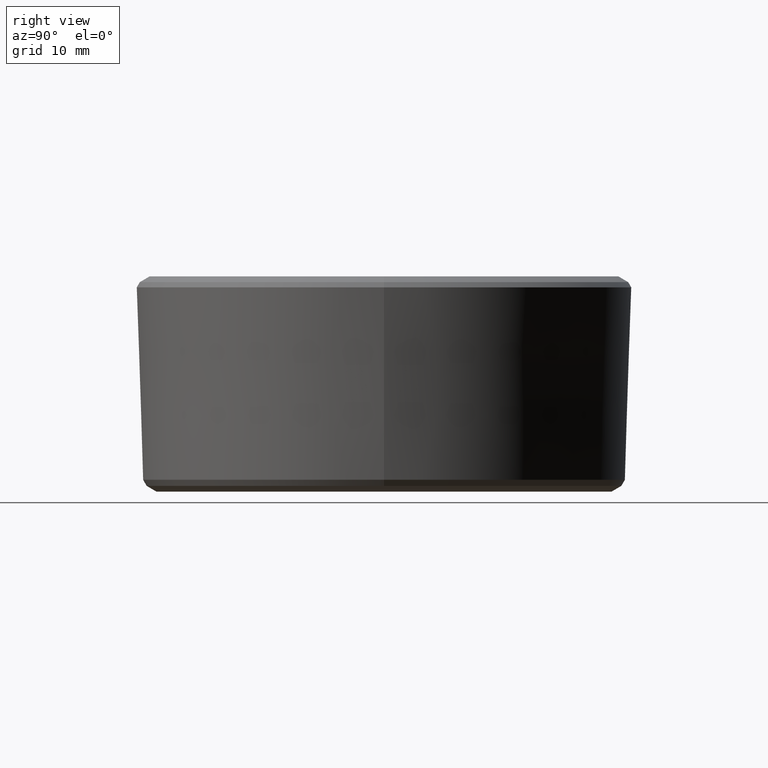
[diagram: clean part render]
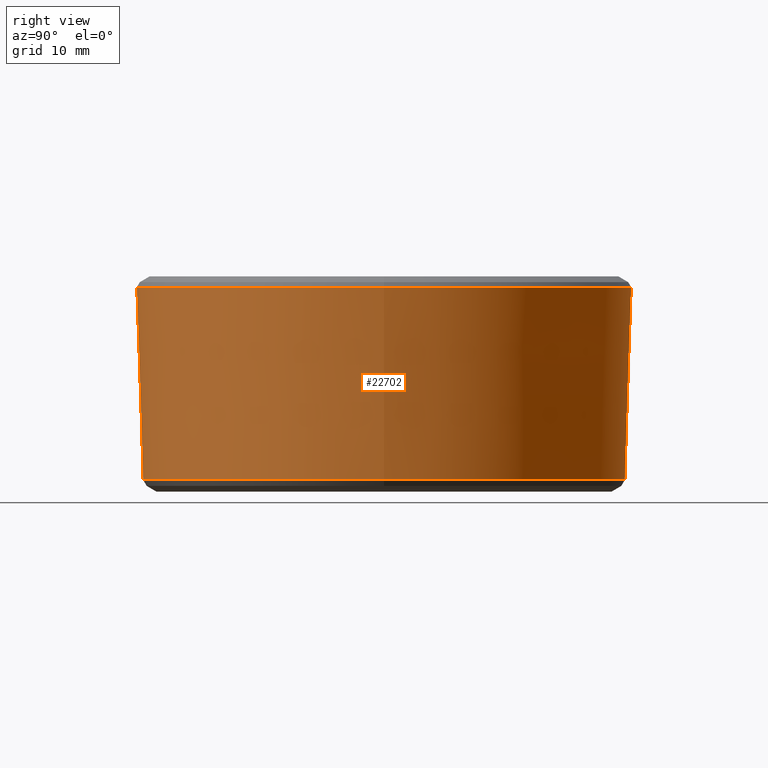
[diagram: same view with one face highlighted and labeled with its STEP entity id]
A machine part, right view. The second image highlights one B-rep face of the part: STEP entity #22702.
In plain terms, the highlighted conical surface has half-angle 1.9 deg.
Its self-contained STEP definition (entity closure, byte-faithful):
#27=CONICAL_SURFACE('',#23600,1.1175,0.0331612557878923);
#3274=FACE_OUTER_BOUND('',#4601,.T.);
#4601=EDGE_LOOP('',(#21433,#21434,#21435,#21436));
#7048=LINE('',#39309,#9494);
#9494=VECTOR('',#27792,1.1175);
#9546=CIRCLE('',#23589,1.11932882181297);
#9548=CIRCLE('',#23594,1.14897541652158);
#11699=VERTEX_POINT('',#39245);
#11701=VERTEX_POINT('',#39254);
#14936=EDGE_CURVE('',#11699,#11699,#9546,.T.);
#14939=EDGE_CURVE('',#11701,#11701,#9548,.T.);
#14959=EDGE_CURVE('',#11701,#11699,#7048,.T.);
#21433=ORIENTED_EDGE('',*,*,#14939,.F.);
#21434=ORIENTED_EDGE('',*,*,#14959,.T.);
#21435=ORIENTED_EDGE('',*,*,#14936,.F.);
#21436=ORIENTED_EDGE('',*,*,#14959,.F.);
#22702=ADVANCED_FACE('',(#3274),#27,.T.);
#23589=AXIS2_PLACEMENT_3D('',#39247,#27755,#27756);
#23594=AXIS2_PLACEMENT_3D('',#39255,#27766,#27767);
#23600=AXIS2_PLACEMENT_3D('',#39308,#27790,#27791);
#27755=DIRECTION('center_axis',(0.,0.,-1.));
#27756=DIRECTION('ref_axis',(-1.,-6.12323399573677E-17,0.));
#27766=DIRECTION('center_axis',(0.,0.,1.));
#27767=DIRECTION('ref_axis',(-1.,-6.12323399573676E-17,0.));
#27790=DIRECTION('center_axis',(0.,0.,1.));
#27791=DIRECTION('ref_axis',(-1.,0.,0.));
#27792=DIRECTION('',(-0.0331551783885263,-4.06033830886682E-18,-0.999450215941757));
#39245=CARTESIAN_POINT('',(1.11932882181297,0.,0.0551291365251279));
#39247=CARTESIAN_POINT('Origin',(0.,6.85391229413318E-17,0.0551291365251279));
#39254=CARTESIAN_POINT('',(1.14897541652158,2.8141781322843E-16,0.948814434677713));
#39255=CARTESIAN_POINT('Origin',(0.,7.03544533071074E-17,0.948814434677713));
#39308=CARTESIAN_POINT('Origin',(0.,0.,0.));
#39309=CARTESIAN_POINT('',(1.1175,1.36854279804717E-16,0.));